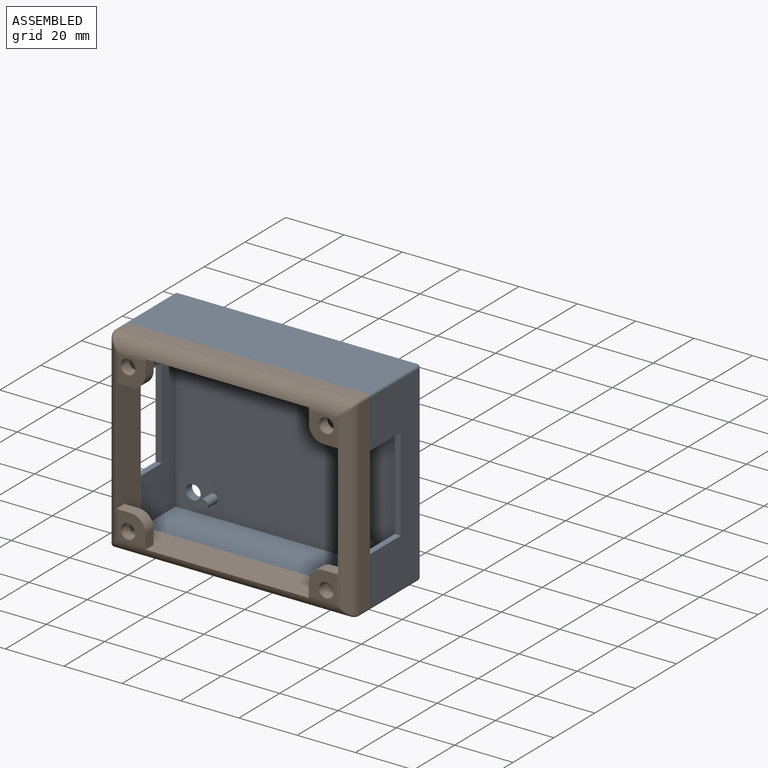
[diagram: assembled view]
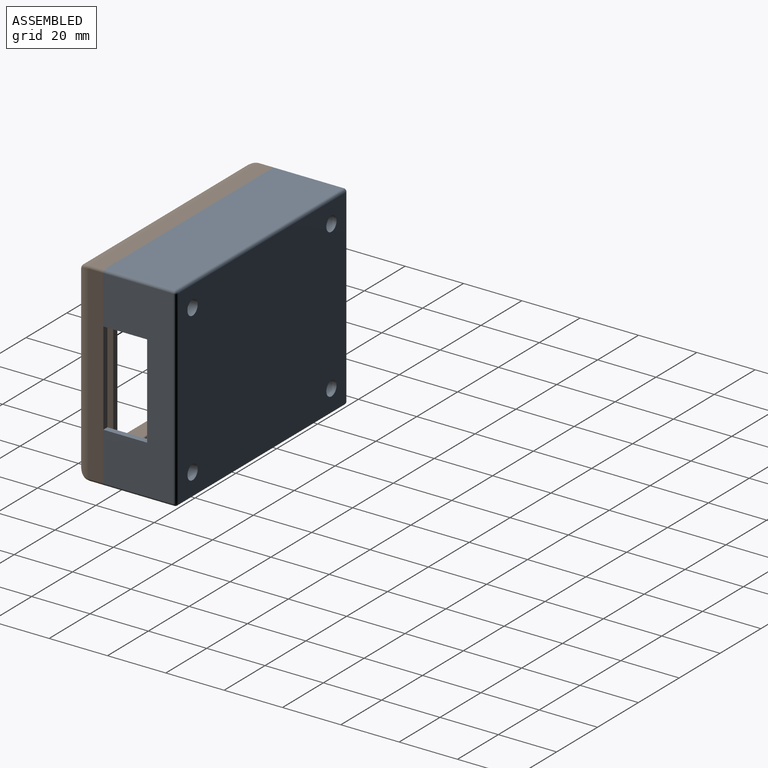
[diagram: assembled view, second angle]
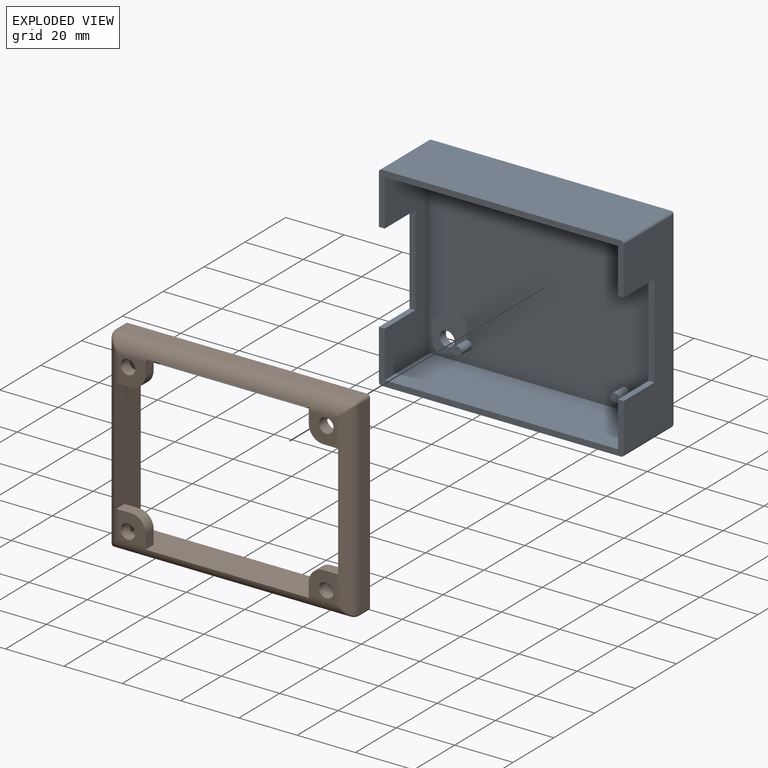
[diagram: exploded view]
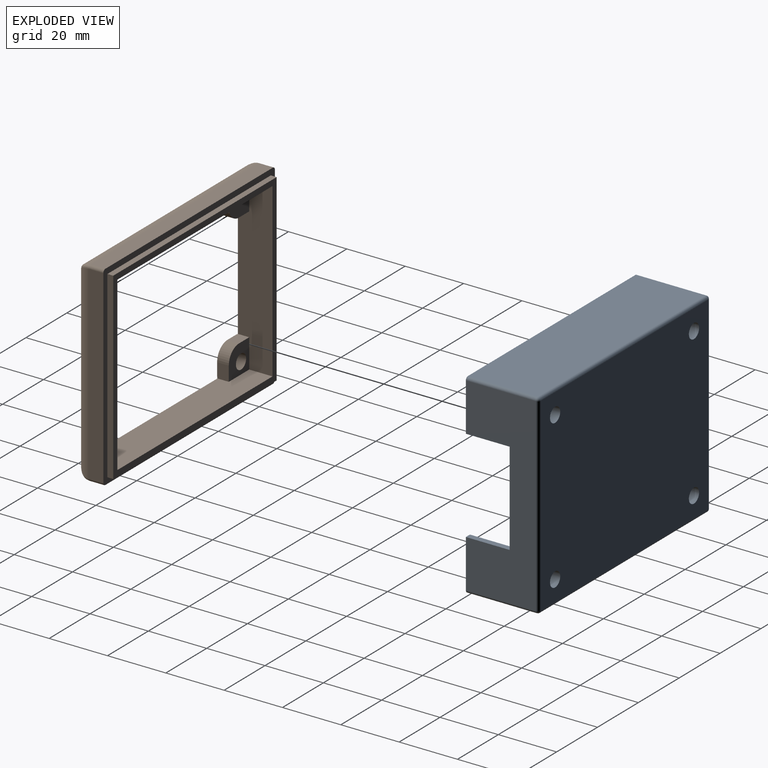
[diagram: exploded view, second angle]
ASSEMBLY  parts=2 mates=2
PART A: 42 faces, bbox 84x25x67 mm
  f0: plane 84x18mm, normal (0,-1,0), area 230.6mm2, adj f2,f3,f4,f5,f8,f9,f17,f23
  f1: plane 84x18mm, normal (0,-1,0), area 230.6mm2, adj f2,f3,f5,f6,f9,f10,f12,f14
  f2: plane 65x24mm, normal (1,0,0), area 1080mm2, adj f0,f1,f12,f16,f17,f36,f37,f38
  f3: plane 63x22mm, normal (-1,0,0), area 906mm2, adj f0,f1,f8,f10,f11,f36,f37,f38
  f4: plane 82x24mm, normal (0,0,1), area 1968mm2, adj f0,f17,f21,f23
  f5: plane 65x24mm, normal (-1,0,0), area 1095mm2, adj f0,f1,f14,f20,f23,f39,f40,f41
  f6: plane 82x24mm, normal (0,0,-1), area 1968mm2, adj f1,f12,f14,f15
  f7: plane 82x65mm, normal (0,1,0), area 5251.5mm2, adj f15,f16,f20,f21,f24,f25,f26,f27
  f8: plane 80x22mm, normal (0,0,-1), area 1760mm2, adj f0,f3,f9,f11
  f9: plane 63x22mm, normal (1,0,0), area 921mm2, adj f0,f1,f8,f10,f11,f39,f40,f41
  f10: plane 80x22mm, normal (0,0,1), area 1760mm2, adj f1,f3,f9,f11
  f11: plane 80x63mm, normal (0,-1,0), area 4933.2mm2, adj f3,f8,f9,f10,f24,f25,f26,f27
  f12: cylinder r=1mm len=24mm, axis (0,-1,0), area 37.7mm2, adj f1,f2,f6,f13
  f13: sphere r=1mm, area 1.6mm2, adj f12,f15,f16
  f14: cylinder r=1mm len=24mm, axis (0,1,0), area 37.7mm2, adj f1,f5,f6,f18
  f15: cylinder r=1mm len=82mm, axis (1,0,0), area 128.8mm2, adj f6,f7,f13,f18
  f16: cylinder r=1mm len=65mm, axis (0,0,1), area 102.1mm2, adj f2,f7,f13,f19
  f17: cylinder r=1mm len=24mm, axis (0,1,0), area 37.7mm2, adj f0,f2,f4,f19
  f18: sphere r=1mm, area 1.6mm2, adj f14,f15,f20
  f19: sphere r=1mm, area 1.6mm2, adj f16,f17,f21
  f20: cylinder r=1mm len=65mm, axis (0,0,-1), area 102.1mm2, adj f5,f7,f18,f22
  f21: cylinder r=1mm len=82mm, axis (-1,0,0), area 128.8mm2, adj f4,f7,f19,f22
  f22: sphere r=1mm, area 1.6mm2, adj f20,f21,f23
  f23: cylinder r=1mm len=24mm, axis (0,-1,0), area 37.7mm2, adj f0,f4,f5,f22
  f24: cylinder r=2.5mm len=5mm, axis (0,-1,0), area 47.1mm2, adj f7,f11
  f25: cylinder r=2.5mm len=5mm, axis (0,-1,0), area 47.1mm2, adj f7,f11
  f26: cylinder r=2.5mm len=5mm, axis (0,-1,0), area 47.1mm2, adj f7,f11
  f27: cylinder r=2.5mm len=5mm, axis (0,-1,0), area 47.1mm2, adj f7,f11
  f28: cylinder r=1.5mm len=5mm, axis (0,1,0), area 47.1mm2, adj f11,f29
  f29: plane 3x3mm, normal (0,-1,0), area 7.1mm2, adj f28
  f30: cylinder r=1.5mm len=5mm, axis (0,1,0), area 47.1mm2, adj f11,f31
  f31: plane 3x3mm, normal (0,-1,0), area 7.1mm2, adj f30
  f32: cylinder r=1.5mm len=5mm, axis (0,1,0), area 47.1mm2, adj f11,f33
  f33: plane 3x3mm, normal (0,-1,0), area 7.1mm2, adj f32
  f34: cylinder r=1.5mm len=5mm, axis (0,1,0), area 47.1mm2, adj f11,f35
  f35: plane 3x3mm, normal (0,-1,0), area 7.1mm2, adj f34
  f36: plane 15x2mm, normal (0,0,-1), area 30mm2, adj f0,f2,f3,f38
  f37: plane 15x2mm, normal (0,0,1), area 30mm2, adj f1,f2,f3,f38
  f38: plane 32x2mm, normal (0,-1,0), area 64mm2, adj f2,f3,f36,f37
  f39: plane 15x2mm, normal (0,0,-1), area 30mm2, adj f0,f5,f9,f41
  f40: plane 15x2mm, normal (0,0,1), area 30mm2, adj f1,f5,f9,f41
  f41: plane 31x2mm, normal (0,-1,0), area 62mm2, adj f5,f9,f39,f40
PART B: 50 faces, bbox 84x12x67 mm
  f0: plane 9x9mm, normal (0,-1,0), area 56mm2, adj f4,f12,f13,f29,f45,f49
  f1: plane 9x9mm, normal (0,-1,0), area 56mm2, adj f5,f15,f16,f30,f46,f49
  f2: plane 9x9mm, normal (0,-1,0), area 56mm2, adj f6,f21,f22,f32,f42,f45
  f3: plane 80x63mm, normal (0,1,0), area 556mm2, adj f11,f14,f17,f20,f33,f34,f35,f36
  f4: cylinder r=2.5mm len=5mm, axis (0,1,0), area 62.8mm2, adj f0,f28
  f5: cylinder r=2.5mm len=5mm, axis (0,1,0), area 62.8mm2, adj f1,f27
  f6: cylinder r=2.5mm len=5mm, axis (0,1,0), area 62.8mm2, adj f2,f26
  f7: cylinder r=2.5mm len=5mm, axis (0,1,0), area 62.8mm2, adj f24,f25
  f8: plane 82x5mm, normal (0,0,1), area 410mm2, adj f37,f38,f41,f49
  f9: plane 65x5mm, normal (-1,0,0), area 325mm2, adj f37,f38,f39,f45
  f10: plane 82x5mm, normal (0,0,-1), area 410mm2, adj f37,f39,f40,f42
  f11: plane 59x11.9mm, normal (1,0,0), area 624.1mm2, adj f3,f12,f14,f20,f22,f26,f28,f45
  f12: plane 5x4mm, normal (0,0,-1), area 20mm2, adj f0,f11,f28,f29,f45
  f13: plane 5x4mm, normal (1,0,0), area 20mm2, adj f0,f14,f28,f29,f49
  f14: plane 76x11.9mm, normal (0,0,-1), area 826.3mm2, adj f3,f11,f13,f15,f17,f27,f28,f49
  f15: plane 5x4mm, normal (-1,0,0), area 20mm2, adj f1,f14,f27,f30,f49
  f16: plane 5x4mm, normal (0,0,-1), area 20mm2, adj f1,f17,f27,f30,f46
  f17: plane 59x11.9mm, normal (-1,0,0), area 624.1mm2, adj f3,f14,f16,f18,f20,f25,f27,f46
  f18: plane 5x4mm, normal (0,0,1), area 20mm2, adj f17,f24,f25,f31,f46
  f19: plane 5x4mm, normal (-1,0,0), area 20mm2, adj f20,f24,f25,f31,f42
  f20: plane 76x11.9mm, normal (0,0,1), area 826.3mm2, adj f3,f11,f17,f19,f21,f25,f26,f42
  f21: plane 5x4mm, normal (1,0,0), area 20mm2, adj f2,f20,f26,f32,f42
  f22: plane 5x4mm, normal (0,0,1), area 20mm2, adj f2,f11,f26,f32,f45
  f23: plane 65x5mm, normal (1,0,0), area 325mm2, adj f37,f40,f41,f46
  f24: plane 9x9mm, normal (0,-1,0), area 56mm2, adj f7,f18,f19,f31,f42,f46
  f25: plane 10x10mm, normal (0,1,0), area 75mm2, adj f7,f17,f18,f19,f20,f31
  f26: plane 10x10mm, normal (0,1,0), area 75mm2, adj f6,f11,f20,f21,f22,f32
  f27: plane 10x10mm, normal (0,1,0), area 75mm2, adj f5,f14,f15,f16,f17,f30
  f28: plane 10x10mm, normal (0,1,0), area 75mm2, adj f4,f11,f12,f13,f14,f29
  f29: cylinder r=5mm len=5mm, axis (0,1,0), area 31.4mm2, adj f0,f12,f13,f28
  f30: cylinder r=5mm len=5mm, axis (0,1,0), area 31.4mm2, adj f1,f15,f16,f27
  f31: cylinder r=5mm len=5mm, axis (0,1,0), area 31.4mm2, adj f18,f19,f24,f25
  f32: cylinder r=5mm len=5mm, axis (0,1,0), area 31.4mm2, adj f2,f21,f22,f26
  f33: plane 63x2mm, normal (1,0,0), area 126mm2, adj f3,f34,f36,f37
  f34: plane 80x2mm, normal (0,0,1), area 160mm2, adj f3,f33,f35,f37
  f35: plane 63x2mm, normal (-1,0,0), area 126mm2, adj f3,f34,f36,f37
  f36: plane 80x2mm, normal (0,0,-1), area 160mm2, adj f3,f33,f35,f37
  f37: plane 84x67mm, normal (0,1,0), area 587.1mm2, adj f8,f9,f10,f23,f33,f34,f35,f36
  f38: cylinder r=1mm len=5mm, axis (0,-1,0), area 7.9mm2, adj f8,f9,f37,f47
  f39: cylinder r=1mm len=5mm, axis (0,1,0), area 7.9mm2, adj f9,f10,f37,f43
  f40: cylinder r=1mm len=5mm, axis (0,-1,0), area 7.9mm2, adj f10,f23,f37,f44
  f41: cylinder r=1mm len=5mm, axis (0,1,0), area 7.9mm2, adj f8,f23,f37,f48
  f42: cylinder r=5mm len=82mm, axis (-1,0,0), area 564.8mm2, adj f2,f10,f19,f20,f21,f24,f43,f44
  f43: bspline ~5.78x5mm, area 8.5mm2, adj f39,f42,f45
  f44: bspline ~5.78x5mm, area 8.5mm2, adj f40,f42,f46
  f45: cylinder r=5mm len=65mm, axis (0,0,1), area 448.4mm2, adj f0,f2,f9,f11,f12,f22,f43,f47
  f46: cylinder r=5mm len=65mm, axis (0,0,-1), area 448.4mm2, adj f1,f16,f17,f18,f23,f24,f44,f48
  f47: bspline ~5.78x5mm, area 8.5mm2, adj f38,f45,f49
  f48: bspline ~5.78x5mm, area 8.5mm2, adj f41,f46,f49
  f49: cylinder r=5mm len=82mm, axis (1,0,0), area 564.8mm2, adj f0,f1,f8,f13,f14,f15,f47,f48
PLACE A t=(-20.42,-18.46,7.79)mm
PLACE B t=(-14.13,-41.46,6.64)mm
MATE planar A.f1 <-> B.f37  axis (0,-1,0) through (-10.79,-43.46,-22.58)mm
MATE planar A.f8 <-> B.f34  axis (0,0,-1) through (-10.61,-32.46,39)mm
